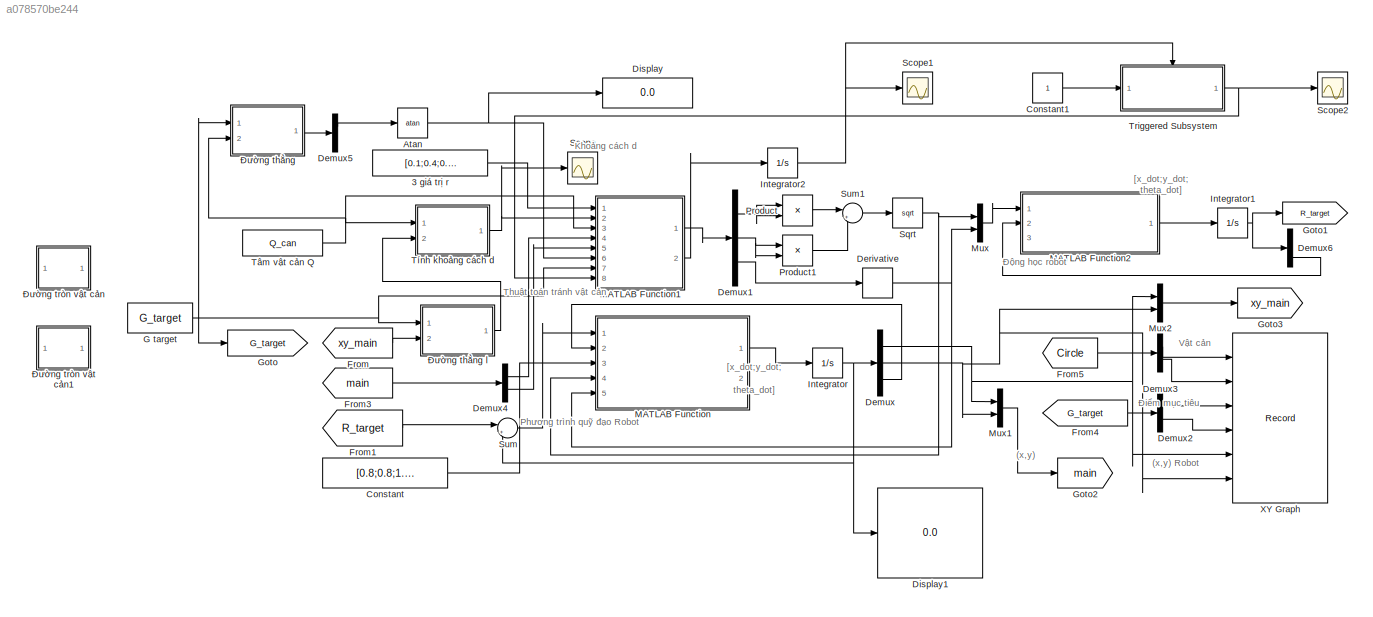
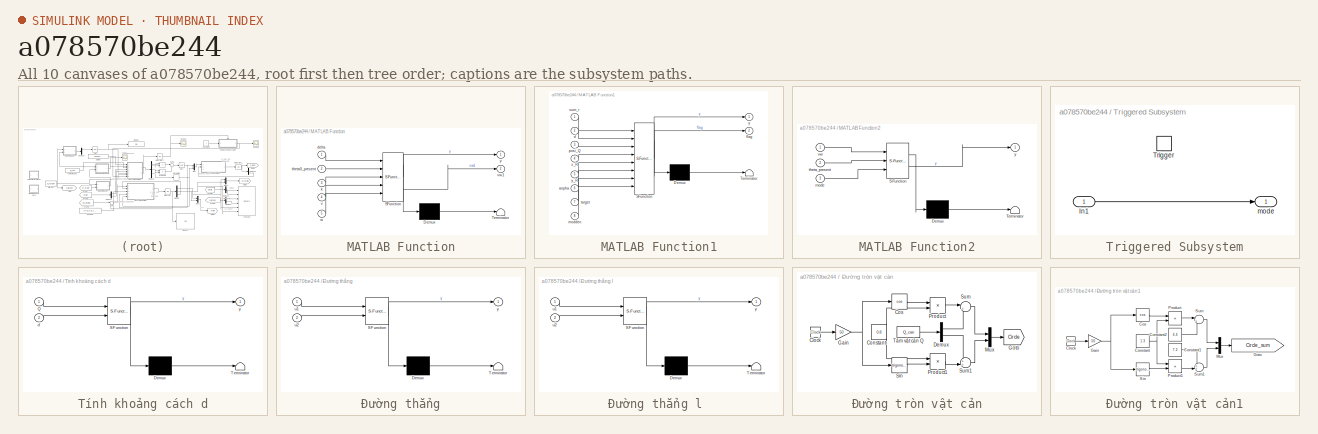
[diagram: thumbnail index - all 10 canvases of the model, root first then tree order]
MODEL slx_a078570be244
KIND model
CONFIG AbsTol = auto
CONFIG EnableMultiTasking = off
CONFIG FixedStep = 0.01
CONFIG MaxStep = auto
CONFIG MinStep = auto
CONFIG RelTol = 1e-3
CONFIG SampleTimeConstraint = Unconstrained
CONFIG SolverName = FixedStepAuto
CONFIG StartTime = 0.0
CONFIG StopTime = 120
WORKSPACE source: mxarray member
WORKSPACE Data_robot = 1
BLOCK [Constant] 3 giá trị r
  Value = [0.1;0.4;0.3]
BLOCK [Trigonometry] Atan
  Operator = atan
  Ports = [1, 1]
BLOCK [Constant] Constant
  Value = [0.8;0.8;1.5]
BLOCK [Constant] Constant1
BLOCK [Demux] Demux
  Outputs = 3
  Ports = [1, 3]
BLOCK [Demux] Demux1
  Outputs = 3
  Ports = [1, 3]
BLOCK [Demux] Demux2
  Outputs = 2
  Ports = [1, 2]
BLOCK [Demux] Demux3
  Outputs = 2
  Ports = [1, 2]
BLOCK [Demux] Demux4
  Outputs = 2
  Ports = [1, 2]
BLOCK [Demux] Demux5
  Outputs = 2
  Ports = [1, 2]
BLOCK [Demux] Demux6
  Outputs = 3
  Ports = [1, 3]
BLOCK [Derivative] Derivative
BLOCK [Display] Display
  Decimation = 1
  Ports = [1]
BLOCK [Display] Display1
  Decimation = 1
  Ports = [1]
BLOCK [From] From
  GotoTag = xy_main
BLOCK [From] From1
  GotoTag = R_target
BLOCK [From] From3
  GotoTag = main
BLOCK [From] From4
  GotoTag = G_target
BLOCK [From] From5
  GotoTag = Circle
  TagVisibility = global
BLOCK [Constant] G target
  Value = G_target
BLOCK [Goto] Goto
  GotoTag = G_target
BLOCK [Goto] Goto1
  GotoTag = R_target
BLOCK [Goto] Goto2
  GotoTag = main
BLOCK [Goto] Goto3
  GotoTag = xy_main
BLOCK [Integrator] Integrator
  InitialCondition = Position_first_vehicle
  Ports = [1, 1]
BLOCK [Integrator] Integrator1
  InitialCondition = Position_first_vehicle
  Ports = [1, 1]
BLOCK [Integrator] Integrator2
  Ports = [1, 1]
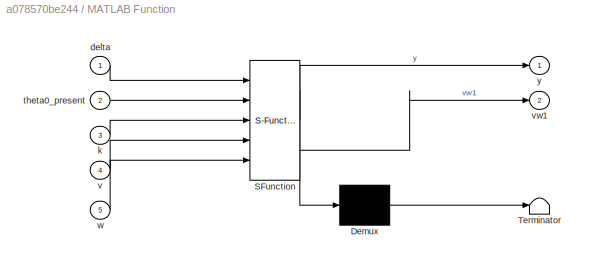
BLOCK [SubSystem] MATLAB Function
  ErrorFcn = Stateflow.Translate.translate
  PermitHierarchicalResolution = ExplicitOnly
  Ports = [5, 2]
  RequestExecContextInheritance = off
  SFBlockType = MATLAB Function
  TreatAsAtomicUnit = on
BLOCK [Demux] MATLAB Function/ Demux 
  Outputs = 1
  Ports = [1, 1]
BLOCK [S-Function] MATLAB Function/ SFunction 
  EnableBusSupport = on
  FunctionName = sf_sfun
  PortCounts = [5 3]
  Ports = [5, 3]
  SFcnIsStateOwnerBlock = off
  SFunctionDeploymentMode = off
  Tag = Stateflow S-Function 2
BLOCK [Terminator] MATLAB Function/ Terminator 
BLOCK [Inport] MATLAB Function/delta
BLOCK [Inport] MATLAB Function/k
  Port = 3
BLOCK [Inport] MATLAB Function/theta0_present
  Port = 2
BLOCK [Inport] MATLAB Function/v
  Port = 4
BLOCK [Outport] MATLAB Function/vw1
  Port = 2
BLOCK [Inport] MATLAB Function/w
  Port = 5
BLOCK [Outport] MATLAB Function/y
  VectorParamsAs1DForOutWhenUnconnected = off
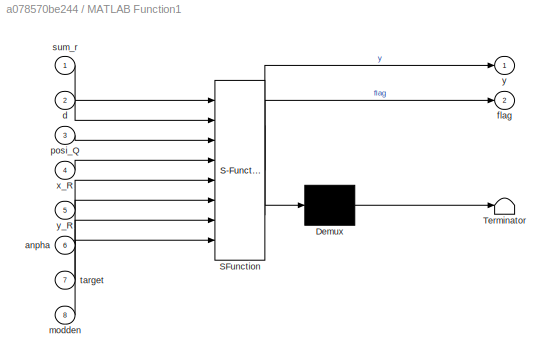
BLOCK [SubSystem] MATLAB Function1
  ErrorFcn = Stateflow.Translate.translate
  PermitHierarchicalResolution = ExplicitOnly
  Ports = [8, 2]
  RequestExecContextInheritance = off
  SFBlockType = MATLAB Function
  TreatAsAtomicUnit = on
BLOCK [Demux] MATLAB Function1/ Demux 
  Outputs = 1
  Ports = [1, 1]
BLOCK [S-Function] MATLAB Function1/ SFunction 
  EnableBusSupport = on
  FunctionName = sf_sfun
  PortCounts = [8 3]
  Ports = [8, 3]
  SFcnIsStateOwnerBlock = off
  SFunctionDeploymentMode = off
  Tag = Stateflow S-Function 4
BLOCK [Terminator] MATLAB Function1/ Terminator 
BLOCK [Inport] MATLAB Function1/anpha
  Port = 6
BLOCK [Inport] MATLAB Function1/d
  Port = 2
BLOCK [Outport] MATLAB Function1/flag
  Port = 2
BLOCK [Inport] MATLAB Function1/modden
  Port = 8
BLOCK [Inport] MATLAB Function1/posi_Q
  Port = 3
BLOCK [Inport] MATLAB Function1/sum_r
BLOCK [Inport] MATLAB Function1/target
  Port = 7
BLOCK [Inport] MATLAB Function1/x_R
  Port = 4
BLOCK [Outport] MATLAB Function1/y
  VectorParamsAs1DForOutWhenUnconnected = off
BLOCK [Inport] MATLAB Function1/y_R
  Port = 5
BLOCK [SubSystem] MATLAB Function2
  ErrorFcn = Stateflow.Translate.translate
  PermitHierarchicalResolution = ExplicitOnly
  Ports = [3, 1]
  RequestExecContextInheritance = off
  SFBlockType = MATLAB Function
  TreatAsAtomicUnit = on
BLOCK [Demux] MATLAB Function2/ Demux 
  Outputs = 1
  Ports = [1, 1]
BLOCK [S-Function] MATLAB Function2/ SFunction 
  EnableBusSupport = on
  FunctionName = sf_sfun
  PortCounts = [3 2]
  Ports = [3, 2]
  SFcnIsStateOwnerBlock = off
  SFunctionDeploymentMode = off
  Tag = Stateflow S-Function 5
BLOCK [Terminator] MATLAB Function2/ Terminator 
BLOCK [Inport] MATLAB Function2/mode
  Port = 3
BLOCK [Inport] MATLAB Function2/theta_present
  Port = 2
BLOCK [Inport] MATLAB Function2/vw
BLOCK [Outport] MATLAB Function2/y
  VectorParamsAs1DForOutWhenUnconnected = off
BLOCK [Mux] Mux
  DisplayOption = bar
  Inputs = 2
  Ports = [2, 1]
BLOCK [Mux] Mux1
  DisplayOption = bar
  Inputs = 2
  Ports = [2, 1]
BLOCK [Mux] Mux2
  DisplayOption = bar
  Inputs = 2
  Ports = [2, 1]
BLOCK [Product] Product
  Ports = [2, 1]
BLOCK [Product] Product1
  Ports = [2, 1]
BLOCK [Scope] Scope
  Floating = off
  NumInputPorts = 1
  Ports = [1]
  ScopeSpecificationString = Simulink.scopes.TimeScopeBlockCfg('CurrentConfiguration', extmgr.ConfigurationSet(extmgr.Configuration('Core','General UI',true),extmgr.Configuration('Core','Source UI',true),extmgr.Configuration('Sources','WiredSimulink',true),extmgr.Configuration('Visuals','Time Domain',true,'SerializedDisplays',{struct('MinYLimReal','-0.87445','MaxYLimReal','-0.08367','YLabelReal','','MinYLimMag','0.00000','Max...<+1369ch>
BLOCK [Scope] Scope1
  Floating = off
  NumInputPorts = 1
  Ports = [1]
  ScopeSpecificationString = Simulink.scopes.TimeScopeBlockCfg('CurrentConfiguration', extmgr.ConfigurationSet(extmgr.Configuration('Core','General UI',true),extmgr.Configuration('Core','Source UI',true),extmgr.Configuration('Sources','WiredSimulink',true,'DataLoggingVariableName','ScopeData1'),extmgr.Configuration('Visuals','Time Domain',true,'SerializedDisplays',{struct('MinYLimReal','-2.34375','MaxYLimReal','21.09375','YLa...<+1521ch>
BLOCK [Scope] Scope2
  Floating = off
  NumInputPorts = 1
  Ports = [1]
  ScopeSpecificationString = Simulink.scopes.TimeScopeBlockCfg('CurrentConfiguration', extmgr.ConfigurationSet(extmgr.Configuration('Core','General UI',true),extmgr.Configuration('Core','Source UI',true),extmgr.Configuration('Sources','WiredSimulink',true,'DataLoggingVariableName','ScopeData1'),extmgr.Configuration('Visuals','Time Domain',true,'SerializedDisplays',{struct('MinYLimReal','-0.125','MaxYLimReal','1.125','YLabelRe...<+1397ch>
BLOCK [Sqrt] Sqrt
BLOCK [Sum] Sum
  Inputs = |+-
  Ports = [2, 1]
BLOCK [Sum] Sum1
  Inputs = |++
  Ports = [2, 1]
BLOCK [SubSystem] Triggered Subsystem
  Ports = [1, 1, 0, 1]
  RequestExecContextInheritance = off
  TreatAsAtomicUnit = on
BLOCK [Inport] Triggered Subsystem/In1
BLOCK [TriggerPort] Triggered Subsystem/Trigger
  Ports = []
  StatesWhenEnabling = held
  VariantControl = (inherit)
BLOCK [Outport] Triggered Subsystem/mode
BLOCK [Constant] Tâm vật cản Q
  Value = Q_can
BLOCK [SubSystem] Tính khoảng cách d
  ErrorFcn = Stateflow.Translate.translate
  PermitHierarchicalResolution = ExplicitOnly
  Ports = [2, 1]
  RequestExecContextInheritance = off
  SFBlockType = MATLAB Function
  TreatAsAtomicUnit = on
BLOCK [Demux] Tính khoảng cách d/ Demux 
  Outputs = 1
  Ports = [1, 1]
BLOCK [S-Function] Tính khoảng cách d/ SFunction 
  EnableBusSupport = on
  FunctionName = sf_sfun
  PortCounts = [2 2]
  Ports = [2, 2]
  SFcnIsStateOwnerBlock = off
  SFunctionDeploymentMode = off
  Tag = Stateflow S-Function 3
BLOCK [Terminator] Tính khoảng cách d/ Terminator 
BLOCK [Inport] Tính khoảng cách d/Q
BLOCK [Inport] Tính khoảng cách d/d
  Port = 2
BLOCK [Outport] Tính khoảng cách d/y
  VectorParamsAs1DForOutWhenUnconnected = off
BLOCK [Record] XY Graph
  CompatibilityTag = XY
  FileSettingsInternal = {"entries":[{"content":{"excelSettings":{"content":{},"type":"Streamout.ExcelSettings"}},"type":"Streamout.FileSettingStorage","uuid":"d028dad2-fe41-4f29-b7cf-11e89291ac11"}],"packageUris":["http://schema.mathworks.com/mf0/streamout_blocks/R2020a"],"version":"1.0"}
  Layout = [1 1]
  Ports = [6]
  SignalsInternal = {"entries":[{"content":{"signals":[{"content":{"blockPath":["Avoid_vat_can_1xe/XY Graph"],"channel":[],"dimensions":[1],"domain":"Avoid_vat_can_1xe/XY Graph","lineColor":"#ff6929","plots":[1],"port":1,"sid":[""],"signalID":232,"signalName":"Demux3:1"},"type":"RecordBlkView.Signal","uuid":"5252b280-9464-4429-a510-c86b50e29c90"},{"content":{"blockPath":["Avoid_vat_can_1xe/XY Graph"],"channel":[],"di...<+1573ch>
  VisualizationBindings = {"xyplotplugin":{"info":[{"series":[{"bindingParametersList":[{"parameter":"X-Axis","signalID":232,"signalName":"Demux3:1"},{"parameter":"Y-Axis","signalID":236,"signalName":"Demux3:2"}],"seriesID":42404},{"bindingParametersList":[{"parameter":"X-Axis","signalID":240,"signalName":"Demux:1"},{"parameter":"Y-Axis","signalID":244,"signalName":"Demux:2"}],"seriesID":45031},{"bindingParametersList":[{"...<+187ch>
BLOCK [SubSystem] Đường thẳng
  ErrorFcn = Stateflow.Translate.translate
  PermitHierarchicalResolution = ExplicitOnly
  Ports = [2, 1]
  RequestExecContextInheritance = off
  SFBlockType = MATLAB Function
  TreatAsAtomicUnit = on
BLOCK [SubSystem] Đường thẳng l 
  ErrorFcn = Stateflow.Translate.translate
  PermitHierarchicalResolution = ExplicitOnly
  Ports = [2, 1]
  RequestExecContextInheritance = off
  SFBlockType = MATLAB Function
  TreatAsAtomicUnit = on
BLOCK [Demux] Đường thẳng l / Demux 
  Outputs = 1
  Ports = [1, 1]
BLOCK [S-Function] Đường thẳng l / SFunction 
  EnableBusSupport = on
  FunctionName = sf_sfun
  PortCounts = [2 2]
  Ports = [2, 2]
  SFcnIsStateOwnerBlock = off
  SFunctionDeploymentMode = off
  Tag = Stateflow S-Function 1
BLOCK [Terminator] Đường thẳng l / Terminator 
BLOCK [Inport] Đường thẳng l /u1
BLOCK [Inport] Đường thẳng l /u2
  Port = 2
BLOCK [Outport] Đường thẳng l /y
  VectorParamsAs1DForOutWhenUnconnected = off
BLOCK [Demux] Đường thẳng/ Demux 
  Outputs = 1
  Ports = [1, 1]
BLOCK [S-Function] Đường thẳng/ SFunction 
  EnableBusSupport = on
  FunctionName = sf_sfun
  PortCounts = [2 2]
  Ports = [2, 2]
  SFcnIsStateOwnerBlock = off
  SFunctionDeploymentMode = off
  Tag = Stateflow S-Function 6
BLOCK [Terminator] Đường thẳng/ Terminator 
BLOCK [Inport] Đường thẳng/u1
BLOCK [Inport] Đường thẳng/u2
  Port = 2
BLOCK [Outport] Đường thẳng/y
  VectorParamsAs1DForOutWhenUnconnected = off
BLOCK [SubSystem] Đường tròn vật cản
  Ports = []
  RequestExecContextInheritance = off
BLOCK [Clock] Đường tròn vật cản/Clock
BLOCK [Constant] Đường tròn vật cản/Constant
  Value = 0.8
BLOCK [Trigonometry] Đường tròn vật cản/Cos
  Operator = cos
  Ports = [1, 1]
BLOCK [Demux] Đường tròn vật cản/Demux
  Outputs = 2
  Ports = [1, 2]
BLOCK [Gain] Đường tròn vật cản/Gain
  Gain = 50
BLOCK [Goto] Đường tròn vật cản/Goto
  GotoTag = Circle
  TagVisibility = global
BLOCK [Mux] Đường tròn vật cản/Mux
  DisplayOption = bar
  Inputs = 2
  Ports = [2, 1]
BLOCK [Product] Đường tròn vật cản/Product
  Ports = [2, 1]
BLOCK [Product] Đường tròn vật cản/Product1
  Ports = [2, 1]
BLOCK [Trigonometry] Đường tròn vật cản/Sin
  Ports = [1, 1]
BLOCK [Sum] Đường tròn vật cản/Sum
  Inputs = |++
  Ports = [2, 1]
BLOCK [Sum] Đường tròn vật cản/Sum1
  Inputs = ++|
  Ports = [2, 1]
BLOCK [Constant] Đường tròn vật cản/Tâm vật cản Q
  Value = Q_can
BLOCK [SubSystem] Đường tròn vật cản1
  Ports = []
  RequestExecContextInheritance = off
BLOCK [Clock] Đường tròn vật cản1/Clock
BLOCK [Constant] Đường tròn vật cản1/Constant
  Value = 1.3
BLOCK [Constant] Đường tròn vật cản1/Constant1
  Value = 7.2
BLOCK [Constant] Đường tròn vật cản1/Constant2
  Value = 4.4
BLOCK [Trigonometry] Đường tròn vật cản1/Cos
  Operator = cos
  Ports = [1, 1]
BLOCK [Gain] Đường tròn vật cản1/Gain
  Gain = 50
BLOCK [Goto] Đường tròn vật cản1/Goto
  GotoTag = Circle_sum
  TagVisibility = global
BLOCK [Mux] Đường tròn vật cản1/Mux
  DisplayOption = bar
  Inputs = 2
  Ports = [2, 1]
BLOCK [Product] Đường tròn vật cản1/Product
  Ports = [2, 1]
BLOCK [Product] Đường tròn vật cản1/Product1
  Ports = [2, 1]
BLOCK [Trigonometry] Đường tròn vật cản1/Sin
  Ports = [1, 1]
BLOCK [Sum] Đường tròn vật cản1/Sum
  Inputs = |++
  Ports = [2, 1]
BLOCK [Sum] Đường tròn vật cản1/Sum1
  Inputs = ++|
  Ports = [2, 1]
ANNOTATION (root): (x,y)
ANNOTATION (root): (x,y) Robot
ANNOTATION (root): Phương trình quỹ đạo Robot
ANNOTATION (root): Thuật toán tránh vật cản
ANNOTATION (root): Động học robot
ANNOTATION (root): Khoảng cách d
ANNOTATION (root): Vật cản
ANNOTATION (root): [x_dot;y_dot; theta_dot]
ANNOTATION (root): Điểm mục tiêu
LINE 3 giá trị r:1 -> MATLAB Function1:1
NET Atan:1 -> Display:1, MATLAB Function1:6
LINE Constant1:1 -> Triggered Subsystem:1
LINE Constant:1 -> MATLAB Function:3
NET Demux1:1 -> Product:1, Product:2
NET Demux1:2 -> Product1:1, Product1:2
LINE Demux1:3 -> Derivative:1
LINE Demux2:1 -> XY Graph:3
LINE Demux2:2 -> XY Graph:4
LINE Demux3:1 -> XY Graph:1
LINE Demux3:2 -> XY Graph:2
LINE Demux4:1 -> MATLAB Function1:4
LINE Demux4:2 -> MATLAB Function1:5
LINE Demux5:1 -> Atan:1
LINE Demux6:3 -> MATLAB Function2:2
NET Demux:1 -> Mux1:1, Mux2:1, XY Graph:5
NET Demux:2 -> Mux1:2, Mux2:2, XY Graph:6
LINE Demux:3 -> MATLAB Function:2
NET Derivative:1 -> MATLAB Function:5, Mux:2
LINE From1:1 -> Sum:1
LINE From3:1 -> Demux4:1
LINE From4:1 -> Demux2:1
LINE From5:1 -> Demux3:1
LINE From:1 -> Đường thẳng l :2
NET G target:1 -> Goto:1, MATLAB Function1:7, Đường thẳng l :1, Đường thẳng:1
NET Integrator1:1 -> Demux6:1, Goto1:1
NET Integrator2:1 -> Scope1:1, Triggered Subsystem:trigger
NET Integrator:1 -> Demux:1, Display1:1, Sum:2
LINE MATLAB Function1:1 -> Demux1:1
LINE MATLAB Function1:2 -> Integrator2:1
LINE MATLAB Function2:1 -> Integrator1:1
LINE MATLAB Function:1 -> Integrator:1
LINE Mux1:1 -> Goto2:1
LINE Mux2:1 -> Goto3:1
LINE Mux:1 -> MATLAB Function2:1
LINE Product1:1 -> Sum1:2
LINE Product:1 -> Sum1:1
NET Sqrt:1 -> MATLAB Function:4, Mux:1
LINE Sum1:1 -> Sqrt:1
LINE Sum:1 -> MATLAB Function:1
LINE Triggered Subsystem/In1:1 -> Triggered Subsystem/mode:1
NET Triggered Subsystem:1 -> MATLAB Function1:8, Scope2:1
NET Tâm vật cản Q:1 -> MATLAB Function1:3, Tính khoảng cách d:1, Đường thẳng:2
NET Tính khoảng cách d:1 -> MATLAB Function1:2, Scope:1
LINE Đường thẳng l :1 -> Tính khoảng cách d:2
LINE Đường thẳng:1 -> Demux5:1
LINE Đường tròn vật cản/Clock:1 -> Đường tròn vật cản/Gain:1
NET Đường tròn vật cản/Constant:1 -> Đường tròn vật cản/Product1:1, Đường tròn vật cản/Product:2
LINE Đường tròn vật cản/Cos:1 -> Đường tròn vật cản/Product:1
LINE Đường tròn vật cản/Demux:1 -> Đường tròn vật cản/Sum:2
LINE Đường tròn vật cản/Demux:2 -> Đường tròn vật cản/Sum1:1
NET Đường tròn vật cản/Gain:1 -> Đường tròn vật cản/Cos:1, Đường tròn vật cản/Sin:1
LINE Đường tròn vật cản/Mux:1 -> Đường tròn vật cản/Goto:1
LINE Đường tròn vật cản/Product1:1 -> Đường tròn vật cản/Sum1:2
LINE Đường tròn vật cản/Product:1 -> Đường tròn vật cản/Sum:1
LINE Đường tròn vật cản/Sin:1 -> Đường tròn vật cản/Product1:2
LINE Đường tròn vật cản/Sum1:1 -> Đường tròn vật cản/Mux:2
LINE Đường tròn vật cản/Sum:1 -> Đường tròn vật cản/Mux:1
LINE Đường tròn vật cản/Tâm vật cản Q:1 -> Đường tròn vật cản/Demux:1
LINE Đường tròn vật cản1/Clock:1 -> Đường tròn vật cản1/Gain:1
LINE Đường tròn vật cản1/Constant1:1 -> Đường tròn vật cản1/Sum1:1
LINE Đường tròn vật cản1/Constant2:1 -> Đường tròn vật cản1/Sum:2
NET Đường tròn vật cản1/Constant:1 -> Đường tròn vật cản1/Product1:1, Đường tròn vật cản1/Product:2
LINE Đường tròn vật cản1/Cos:1 -> Đường tròn vật cản1/Product:1
NET Đường tròn vật cản1/Gain:1 -> Đường tròn vật cản1/Cos:1, Đường tròn vật cản1/Sin:1
LINE Đường tròn vật cản1/Mux:1 -> Đường tròn vật cản1/Goto:1
LINE Đường tròn vật cản1/Product1:1 -> Đường tròn vật cản1/Sum1:2
LINE Đường tròn vật cản1/Product:1 -> Đường tròn vật cản1/Sum:1
LINE Đường tròn vật cản1/Sin:1 -> Đường tròn vật cản1/Product1:2
LINE Đường tròn vật cản1/Sum1:1 -> Đường tròn vật cản1/Mux:2
LINE Đường tròn vật cản1/Sum:1 -> Đường tròn vật cản1/Mux:1
note: NET lines group one-source signal fan-out (src -> all destinations, sorted); 1:1 wires keep LINE
CHART Đường thẳng l  states=1 transitions=1
  STATE_LABEL 'eML_blk_kernel()'
  STATE_LABEL 'SCRIPT:\nfunction y = fcn(u1,u2)\n%#codegen\n% Đường thẳng từ tâm Robot đến điểm mục tiêu\na=(u1(2)-u2(2))/(u1(1)-u2(1));\nb=u1(2)-u1(1)*a;\nu=[a;b];\ny = u;'
CHART MATLAB Function states=1 transitions=1
  STATE_LABEL 'eML_blk_kernel()'
  STATE_LABEL 'SCRIPT:\nfunction [y,vw1] = fcn(delta,theta0_present,k,v,w)\n%#codegen\nA=[cos(theta0_present)   sin(theta0_present) 0;\n    -sin(theta0_present) cos(theta0_present) 0;\n    0                    0                    1];\ne=A*delta;\nV_c=[v*cos(e(3))+k(1)*e(1);\n    w+k(2)*v*e(2)+k(3)*v*sin(e(3))];\n\nMatrix=[cos(theta0_present) 0;\n        sin(theta0_present) 0;\n        0                   1];\nu=Matrix*V_c;\n...<+15ch>'
CHART Tính khoảng cách d states=1 transitions=1
  STATE_LABEL 'eML_blk_kernel()'
  STATE_LABEL 'SCRIPT:\nfunction y = fcn(Q,d)\n%#codegen\na=d(1);\nb=-1;\nc=d(2);\nu=( Q(1)*a + b*Q(2) +c )/sqrt(a^2+b^2);\ny = u;'
CHART MATLAB Function1 states=1 transitions=1
  STATE_LABEL 'eML_blk_kernel()'
  STATE_LABEL 'SCRIPT:\nfunction [y,flag]= fcn(sum_r,d,posi_Q,x_R,y_R,anpha,target,modden)\n%#codegen\nrv=sum_r(1)+sum_r(2)+sum_r(3);\n\n\n\nM=[cos(anpha) -sin(anpha) 0 posi_Q(1);\n    sin(anpha) cos(anpha) 0 posi_Q(2);\n    0 0 1 0;\n    0 0 0 1];\nN=[x_R;y_R;0;1];\nVitri=inv(M)*N;\ndd=abs(1.697*x_R-y_R-1.842)/sqrt(1.697^2+1);\nif ((d<rv) &&(dd>0.1))\n    mode=0;\nelse\n    mode=1;\n\nend\n\nif (modden==0)\n        xr_dot=(d/abs(d))...<+573ch>'
CHART MATLAB Function2 states=1 transitions=1
  STATE_LABEL 'eML_blk_kernel()'
  STATE_LABEL 'SCRIPT:\nfunction y = fcn(vw,theta_present,mode)\n%#codegen\n% if (mode==0)\n%     vw1=[vw(1);vw(2)];\n% else\n%     vw1=[0.04;0];\n% end\nMatrix=[cos(theta_present) 0;\n        sin(theta_present) 0;\n        0                   1];\nu=Matrix*vw;\ny = u;'
CHART Đường thẳng states=1 transitions=1
  STATE_LABEL 'eML_blk_kernel()'
  STATE_LABEL 'SCRIPT:\nfunction y = fcn(u1,u2)\n%Đường thẳng từ mục tiêu đến tâm vật cản\na=(u1(2)-u2(2))/(u1(1)-u2(1)); %hệ số góc\nb=u1(2)-u1(1)*a;\nu=[a;b];\ny = u;'
CHART  states=0 transitions=0
CHART  states=0 transitions=0
CHART  states=0 transitions=0
CHART  states=0 transitions=0
CHART  states=0 transitions=0
CHART  states=0 transitions=0
